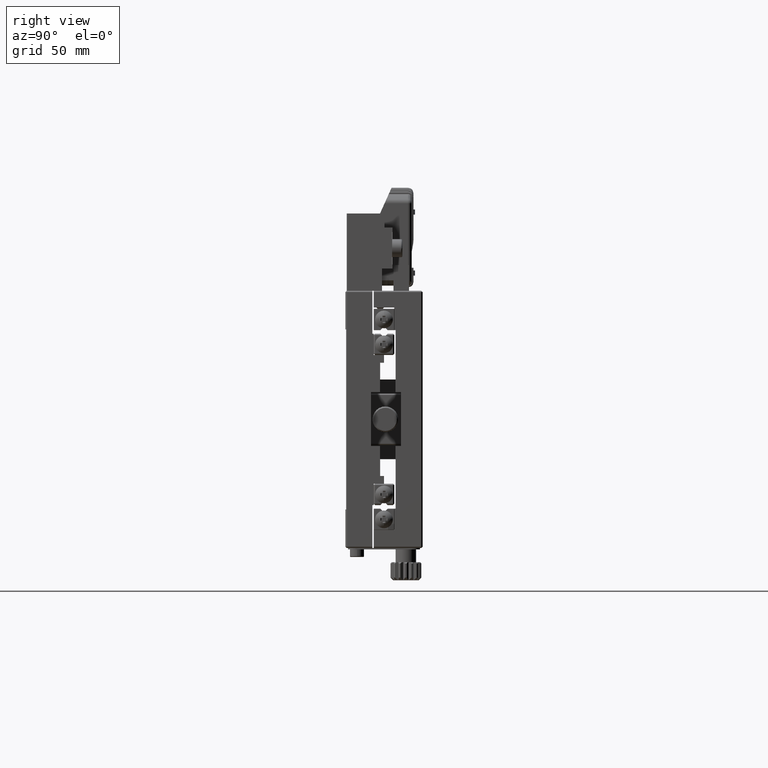
[diagram: clean part render]
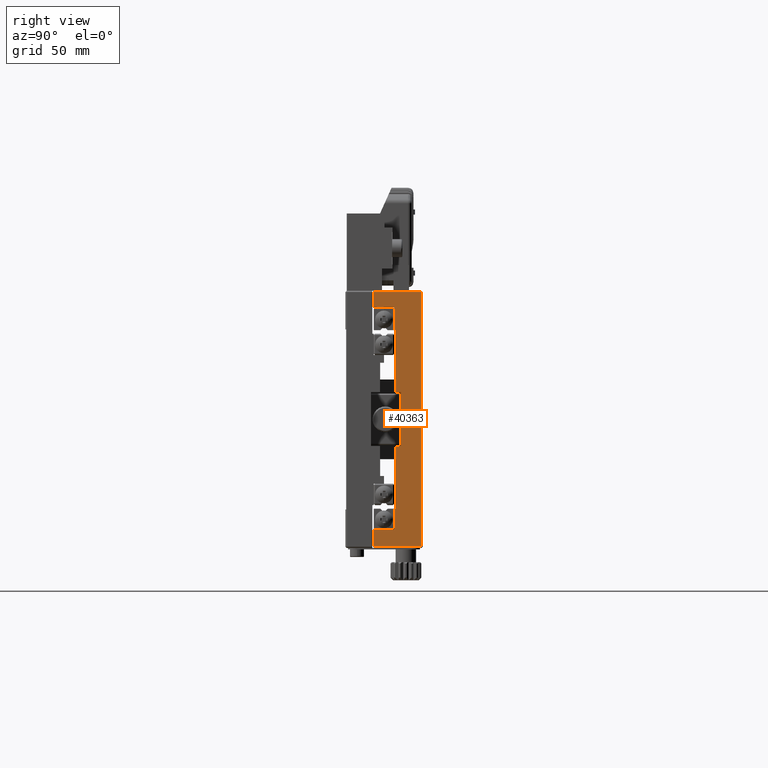
[diagram: same view with one face highlighted and labeled with its STEP entity id]
A machine part, right view. The second image highlights one B-rep face of the part: STEP entity #40363.
In plain terms, the highlighted planar face has unit normal (1, 0, 0).
Its self-contained STEP definition (entity closure, byte-faithful):
#373 = LINE ( 'NONE', #41340, #29186 ) ;
#461 = EDGE_CURVE ( 'NONE', #53117, #54751, #60482, .T. ) ;
#715 = DIRECTION ( 'NONE',  ( 0.000000000000000000, 0.000000000000000000, -1.000000000000000000 ) ) ;
#4107 = LINE ( 'NONE', #59724, #41151 ) ;
#4233 = DIRECTION ( 'NONE',  ( 0.000000000000000000, -1.000000000000000000, -0.000000000000000000 ) ) ;
#4577 = VECTOR ( 'NONE', #64725, 1000.000000000000000 ) ;
#5058 = EDGE_CURVE ( 'NONE', #14576, #53117, #30094, .T. ) ;
#5469 = EDGE_CURVE ( 'NONE', #22195, #38419, #47317, .T. ) ;
#5486 = EDGE_CURVE ( 'NONE', #49471, #11835, #46328, .T. ) ;
#5815 = ORIENTED_EDGE ( 'NONE', *, *, #14645, .T. ) ;
#6931 = CARTESIAN_POINT ( 'NONE',  ( 6.776263578034402713E-17, 29.50000000000000355, -49.50000000000000711 ) ) ;
#7012 = CARTESIAN_POINT ( 'NONE',  ( 5.421010862427522170E-17, 11.00000000000000000, -49.50000000000000000 ) ) ;
#7225 = VERTEX_POINT ( 'NONE', #19049 ) ;
#7892 = DIRECTION ( 'NONE',  ( 0.000000000000000000, 0.000000000000000000, -1.000000000000000000 ) ) ;
#8226 = LINE ( 'NONE', #8871, #21380 ) ;
#8563 = ORIENTED_EDGE ( 'NONE', *, *, #54858, .T. ) ;
#8871 = CARTESIAN_POINT ( 'NONE',  ( 0.000000000000000000, 19.00000000000000000, 0.000000000000000000 ) ) ;
#8907 = DIRECTION ( 'NONE',  ( -0.000000000000000000, 1.000000000000000000, 0.000000000000000000 ) ) ;
#9073 = ORIENTED_EDGE ( 'NONE', *, *, #29784, .T. ) ;
#9813 = CARTESIAN_POINT ( 'NONE',  ( 0.000000000000000000, 11.00000000000000000, -43.00000000000000000 ) ) ;
#10176 = ORIENTED_EDGE ( 'NONE', *, *, #17967, .T. ) ;
#10309 = CARTESIAN_POINT ( 'NONE',  ( 0.000000000000000000, 19.50000000000000000, -10.50000000000000000 ) ) ;
#10676 = LINE ( 'NONE', #30953, #61045 ) ;
#10988 = DIRECTION ( 'NONE',  ( -0.000000000000000000, 1.000000000000000000, 0.000000000000000000 ) ) ;
#11736 = DIRECTION ( 'NONE',  ( -0.000000000000000000, 1.000000000000000000, 0.000000000000000000 ) ) ;
#11835 = VERTEX_POINT ( 'NONE', #41875 ) ;
#12081 = CARTESIAN_POINT ( 'NONE',  ( 0.000000000000000000, 19.50000000000000000, 34.70000000000000284 ) ) ;
#12084 = LINE ( 'NONE', #62384, #52273 ) ;
#12940 = ORIENTED_EDGE ( 'NONE', *, *, #43555, .T. ) ;
#12989 = CARTESIAN_POINT ( 'NONE',  ( 0.000000000000000000, 11.00000000000000000, 0.000000000000000000 ) ) ;
#13769 = LINE ( 'NONE', #34053, #4577 ) ;
#13907 = LINE ( 'NONE', #34196, #29095 ) ;
#14576 = VERTEX_POINT ( 'NONE', #54059 ) ;
#14645 = EDGE_CURVE ( 'NONE', #26456, #16401, #4107, .T. ) ;
#15719 = DIRECTION ( 'NONE',  ( 0.000000000000000000, -1.000000000000000000, -0.000000000000000000 ) ) ;
#16401 = VERTEX_POINT ( 'NONE', #57631 ) ;
#17967 = EDGE_CURVE ( 'NONE', #16401, #22884, #373, .T. ) ;
#18041 = DIRECTION ( 'NONE',  ( 0.000000000000000000, 0.000000000000000000, -1.000000000000000000 ) ) ;
#18042 = CARTESIAN_POINT ( 'NONE',  ( 0.000000000000000000, 19.50000000000000000, -34.70000000000000284 ) ) ;
#18470 = VECTOR ( 'NONE', #44496, 1000.000000000000000 ) ;
#18966 = EDGE_CURVE ( 'NONE', #22195, #14576, #56082, .T. ) ;
#19049 = CARTESIAN_POINT ( 'NONE',  ( 2.766398021465085097E-18, 29.50000000000000355, 49.50000000000000000 ) ) ;
#20890 = VECTOR ( 'NONE', #4233, 1000.000000000000000 ) ;
#21027 = CARTESIAN_POINT ( 'NONE',  ( 0.000000000000000000, 19.50000000000000000, -34.70000000000000284 ) ) ;
#21380 = VECTOR ( 'NONE', #7892, 1000.000000000000000 ) ;
#21809 = VERTEX_POINT ( 'NONE', #6931 ) ;
#22195 = VERTEX_POINT ( 'NONE', #30833 ) ;
#22675 = VECTOR ( 'NONE', #18041, 1000.000000000000000 ) ;
#22884 = VERTEX_POINT ( 'NONE', #10309 ) ;
#24407 = DIRECTION ( 'NONE',  ( 0.000000000000000000, 0.000000000000000000, -1.000000000000000000 ) ) ;
#24971 = ORIENTED_EDGE ( 'NONE', *, *, #40586, .F. ) ;
#25646 = ORIENTED_EDGE ( 'NONE', *, *, #461, .T. ) ;
#26001 = DIRECTION ( 'NONE',  ( -0.000000000000000000, 1.000000000000000000, 0.000000000000000000 ) ) ;
#26456 = VERTEX_POINT ( 'NONE', #35580 ) ;
#26616 = VECTOR ( 'NONE', #11736, 1000.000000000000000 ) ;
#28010 = CARTESIAN_POINT ( 'NONE',  ( 0.000000000000000000, 19.50000000000000000, 0.000000000000000000 ) ) ;
#28167 = EDGE_CURVE ( 'NONE', #7225, #43230, #42644, .T. ) ;
#28280 = ORIENTED_EDGE ( 'NONE', *, *, #18966, .T. ) ;
#29095 = VECTOR ( 'NONE', #8907, 1000.000000000000000 ) ;
#29185 = VERTEX_POINT ( 'NONE', #57976 ) ;
#29186 = VECTOR ( 'NONE', #15719, 1000.000000000000000 ) ;
#29381 = ORIENTED_EDGE ( 'NONE', *, *, #57728, .T. ) ;
#29784 = EDGE_CURVE ( 'NONE', #11835, #26456, #13907, .T. ) ;
#29879 = AXIS2_PLACEMENT_3D ( 'NONE', #42862, #53497, #48201 ) ;
#30094 = LINE ( 'NONE', #9813, #43397 ) ;
#30833 = CARTESIAN_POINT ( 'NONE',  ( 0.000000000000000000, 19.00000000000000000, -34.70000000000000284 ) ) ;
#30953 = CARTESIAN_POINT ( 'NONE',  ( 0.000000000000000000, 11.00000000000000000, -49.50000000000000000 ) ) ;
#31735 = DIRECTION ( 'NONE',  ( -0.000000000000000000, -1.000000000000000000, -0.000000000000000000 ) ) ;
#31902 = ORIENTED_EDGE ( 'NONE', *, *, #41524, .T. ) ;
#32227 = ORIENTED_EDGE ( 'NONE', *, *, #5486, .T. ) ;
#33816 = CARTESIAN_POINT ( 'NONE',  ( 0.000000000000000000, 11.00000000000000000, 0.000000000000000000 ) ) ;
#34053 = CARTESIAN_POINT ( 'NONE',  ( 0.000000000000000000, 29.50000000000000000, 0.000000000000000000 ) ) ;
#34196 = CARTESIAN_POINT ( 'NONE',  ( 0.000000000000000000, 11.00000000000000000, 10.50000000000000000 ) ) ;
#35126 = CARTESIAN_POINT ( 'NONE',  ( 0.000000000000000000, 11.00000000000000000, 49.50000000000000000 ) ) ;
#35580 = CARTESIAN_POINT ( 'NONE',  ( 0.000000000000000000, 21.50000000000000000, 10.50000000000000000 ) ) ;
#37356 = LINE ( 'NONE', #47024, #26616 ) ;
#37547 = FACE_OUTER_BOUND ( 'NONE', #55192, .T. ) ;
#38419 = VERTEX_POINT ( 'NONE', #18042 ) ;
#39498 = ORIENTED_EDGE ( 'NONE', *, *, #5058, .T. ) ;
#39527 = CARTESIAN_POINT ( 'NONE',  ( 0.000000000000000000, 11.00000000000000000, 49.50000000000000000 ) ) ;
#39787 = VECTOR ( 'NONE', #60442, 1000.000000000000000 ) ;
#40363 = ADVANCED_FACE ( 'NONE', ( #37547 ), #48530, .T. ) ;
#40441 = DIRECTION ( 'NONE',  ( 0.000000000000000000, -1.000000000000000000, -0.000000000000000000 ) ) ;
#40586 = EDGE_CURVE ( 'NONE', #49471, #64658, #12084, .T. ) ;
#41151 = VECTOR ( 'NONE', #24407, 1000.000000000000000 ) ;
#41340 = CARTESIAN_POINT ( 'NONE',  ( 0.000000000000000000, 11.00000000000000000, -10.50000000000000000 ) ) ;
#41524 = EDGE_CURVE ( 'NONE', #29185, #64658, #8226, .T. ) ;
#41755 = ORIENTED_EDGE ( 'NONE', *, *, #57539, .T. ) ;
#41875 = CARTESIAN_POINT ( 'NONE',  ( 0.000000000000000000, 19.50000000000000000, 10.50000000000000178 ) ) ;
#42644 = LINE ( 'NONE', #39527, #20890 ) ;
#42862 = CARTESIAN_POINT ( 'NONE',  ( 0.000000000000000000, 11.00000000000000000, 0.000000000000000000 ) ) ;
#43230 = VERTEX_POINT ( 'NONE', #35126 ) ;
#43281 = DIRECTION ( 'NONE',  ( 0.000000000000000000, 0.000000000000000000, -1.000000000000000000 ) ) ;
#43397 = VECTOR ( 'NONE', #40441, 1000.000000000000000 ) ;
#43443 = VECTOR ( 'NONE', #26001, 1000.000000000000000 ) ;
#43555 = EDGE_CURVE ( 'NONE', #54751, #21809, #10676, .T. ) ;
#43854 = ORIENTED_EDGE ( 'NONE', *, *, #52278, .T. ) ;
#44058 = CARTESIAN_POINT ( 'NONE',  ( 0.000000000000000000, 11.00000000000000000, -43.00000000000000000 ) ) ;
#44496 = DIRECTION ( 'NONE',  ( 0.000000000000000000, 0.000000000000000000, -1.000000000000000000 ) ) ;
#45060 = CARTESIAN_POINT ( 'NONE',  ( 0.000000000000000000, 11.00000000000000000, 43.50000000000000711 ) ) ;
#46328 = LINE ( 'NONE', #61980, #50871 ) ;
#47024 = CARTESIAN_POINT ( 'NONE',  ( 0.000000000000000000, 11.00000000000000000, 43.50000000000000711 ) ) ;
#47317 = LINE ( 'NONE', #21027, #43443 ) ;
#48201 = DIRECTION ( 'NONE',  ( 0.000000000000000000, 0.000000000000000000, -1.000000000000000000 ) ) ;
#48530 = PLANE ( 'NONE',  #29879 ) ;
#48613 = LINE ( 'NONE', #12989, #52226 ) ;
#49471 = VERTEX_POINT ( 'NONE', #12081 ) ;
#50428 = CARTESIAN_POINT ( 'NONE',  ( 0.000000000000000000, 19.00000000000000000, 0.000000000000000000 ) ) ;
#50871 = VECTOR ( 'NONE', #715, 1000.000000000000000 ) ;
#52226 = VECTOR ( 'NONE', #43281, 1000.000000000000000 ) ;
#52273 = VECTOR ( 'NONE', #31735, 1000.000000000000000 ) ;
#52278 = EDGE_CURVE ( 'NONE', #59641, #29185, #37356, .T. ) ;
#52967 = ORIENTED_EDGE ( 'NONE', *, *, #28167, .T. ) ;
#53117 = VERTEX_POINT ( 'NONE', #44058 ) ;
#53497 = DIRECTION ( 'NONE',  ( 1.000000000000000000, 0.000000000000000000, 0.000000000000000000 ) ) ;
#54059 = CARTESIAN_POINT ( 'NONE',  ( 0.000000000000000000, 19.00000000000000000, -43.00000000000000000 ) ) ;
#54751 = VERTEX_POINT ( 'NONE', #7012 ) ;
#54858 = EDGE_CURVE ( 'NONE', #43230, #59641, #48613, .T. ) ;
#55192 = EDGE_LOOP ( 'NONE', ( #25646, #12940, #41755, #52967, #8563, #43854, #31902, #24971, #32227, #9073, #5815, #10176, #29381, #58080, #28280, #39498 ) ) ;
#56082 = LINE ( 'NONE', #50428, #39787 ) ;
#57539 = EDGE_CURVE ( 'NONE', #21809, #7225, #13769, .T. ) ;
#57631 = CARTESIAN_POINT ( 'NONE',  ( 0.000000000000000000, 21.50000000000000000, -10.50000000000000000 ) ) ;
#57728 = EDGE_CURVE ( 'NONE', #22884, #38419, #58337, .T. ) ;
#57976 = CARTESIAN_POINT ( 'NONE',  ( 0.000000000000000000, 19.00000000000000000, 43.50000000000000711 ) ) ;
#58080 = ORIENTED_EDGE ( 'NONE', *, *, #5469, .F. ) ;
#58337 = LINE ( 'NONE', #28010, #22675 ) ;
#59641 = VERTEX_POINT ( 'NONE', #45060 ) ;
#59724 = CARTESIAN_POINT ( 'NONE',  ( 0.000000000000000000, 21.50000000000000000, 0.000000000000000000 ) ) ;
#60442 = DIRECTION ( 'NONE',  ( 0.000000000000000000, 0.000000000000000000, -1.000000000000000000 ) ) ;
#60482 = LINE ( 'NONE', #33816, #18470 ) ;
#61045 = VECTOR ( 'NONE', #10988, 1000.000000000000000 ) ;
#61980 = CARTESIAN_POINT ( 'NONE',  ( 0.000000000000000000, 19.50000000000000000, 0.000000000000000000 ) ) ;
#62384 = CARTESIAN_POINT ( 'NONE',  ( 0.000000000000000000, 19.00000000000000000, 34.70000000000000284 ) ) ;
#63320 = CARTESIAN_POINT ( 'NONE',  ( 0.000000000000000000, 19.00000000000000000, 34.70000000000000284 ) ) ;
#64658 = VERTEX_POINT ( 'NONE', #63320 ) ;
#64725 = DIRECTION ( 'NONE',  ( 0.000000000000000000, 0.000000000000000000, 1.000000000000000000 ) ) ;